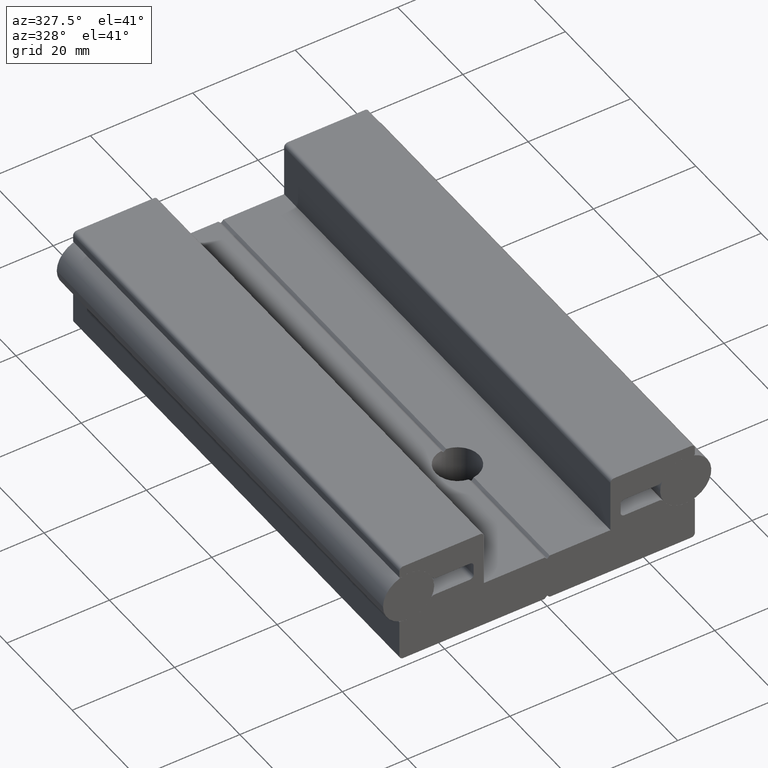
[diagram: clean part render]
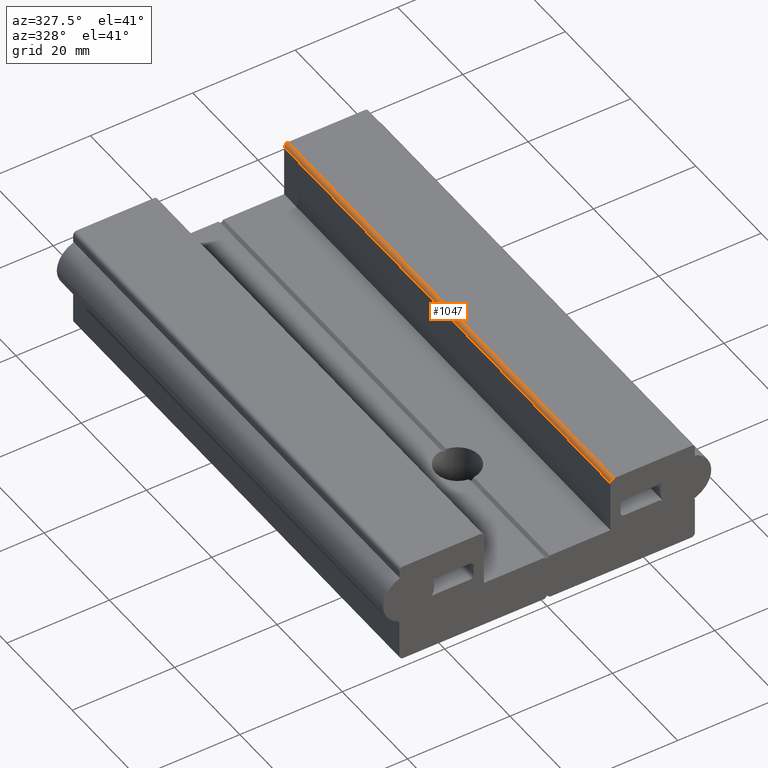
[diagram: same view with one face highlighted and labeled with its STEP entity id]
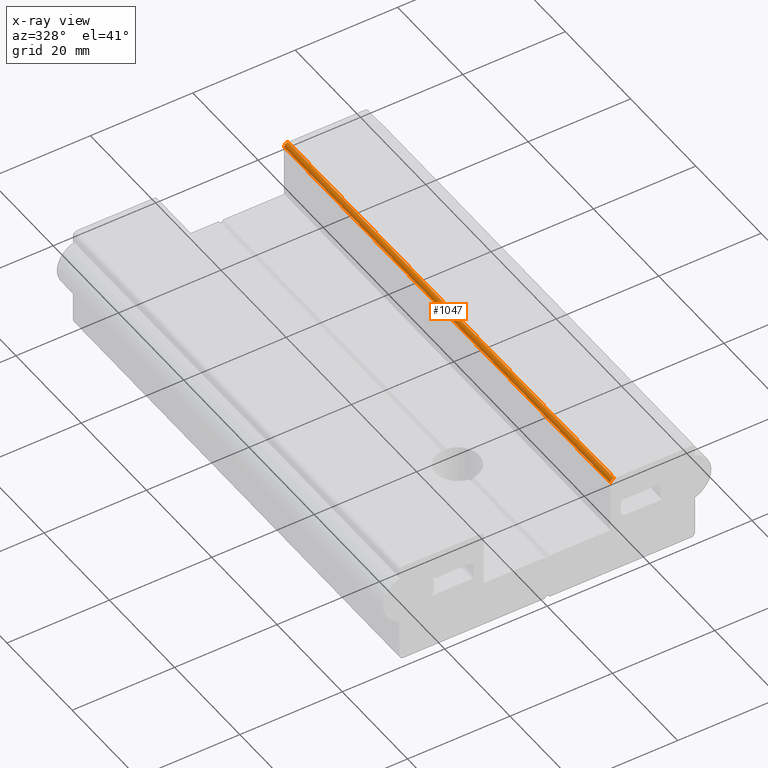
[diagram: x-ray of the same camera — body ghosted, the highlighted face saturated]
A machine part, auxiliary view. The second image highlights one B-rep face of the part: STEP entity #1047.
The next image is the same camera in x-ray: the body ghosted, the highlighted face saturated — about 0% of this face is hidden behind the body in this view.
In plain terms, the highlighted cylindrical surface (edge-blend (fillet) strip) has radius 0.75 mm, axis along (0, 1, 0).
Its self-contained STEP definition (entity closure, byte-faithful):
#91=FACE_OUTER_BOUND('',#145,.T.);
#145=EDGE_LOOP('',(#901,#902,#903,#904));
#245=LINE('',#1869,#341);
#246=LINE('',#1870,#342);
#341=VECTOR('',#1522,10.);
#342=VECTOR('',#1523,10.);
#376=CIRCLE('',#1177,0.75);
#402=CIRCLE('',#1208,0.75);
#465=VERTEX_POINT('',#1705);
#466=VERTEX_POINT('',#1707);
#507=VERTEX_POINT('',#1801);
#508=VERTEX_POINT('',#1803);
#577=EDGE_CURVE('',#465,#466,#376,.T.);
#626=EDGE_CURVE('',#507,#508,#402,.F.);
#659=EDGE_CURVE('',#508,#465,#245,.T.);
#660=EDGE_CURVE('',#507,#466,#246,.T.);
#901=ORIENTED_EDGE('',*,*,#659,.F.);
#902=ORIENTED_EDGE('',*,*,#626,.F.);
#903=ORIENTED_EDGE('',*,*,#660,.T.);
#904=ORIENTED_EDGE('',*,*,#577,.F.);
#1004=CYLINDRICAL_SURFACE('',#1234,0.75);
#1047=ADVANCED_FACE('',(#91),#1004,.T.);
#1177=AXIS2_PLACEMENT_3D('',#1708,#1359,#1360);
#1208=AXIS2_PLACEMENT_3D('',#1804,#1444,#1445);
#1234=AXIS2_PLACEMENT_3D('',#1868,#1520,#1521);
#1359=DIRECTION('center_axis',(0.,1.,0.));
#1360=DIRECTION('ref_axis',(0.,0.,1.));
#1444=DIRECTION('center_axis',(0.,1.,0.));
#1445=DIRECTION('ref_axis',(0.,0.,1.));
#1520=DIRECTION('center_axis',(0.,1.,0.));
#1521=DIRECTION('ref_axis',(0.,0.,-1.));
#1522=DIRECTION('',(0.,1.,0.));
#1523=DIRECTION('',(0.,1.,0.));
#1705=CARTESIAN_POINT('',(12.35,100.,18.75));
#1707=CARTESIAN_POINT('',(13.1,100.,19.5));
#1708=CARTESIAN_POINT('Origin',(13.1,100.,18.75));
#1801=CARTESIAN_POINT('',(13.1,0.,19.5));
#1803=CARTESIAN_POINT('',(12.35,0.,18.75));
#1804=CARTESIAN_POINT('Origin',(13.1,0.,18.75));
#1868=CARTESIAN_POINT('Origin',(13.1,10.,18.75));
#1869=CARTESIAN_POINT('',(12.35,0.,18.75));
#1870=CARTESIAN_POINT('',(13.1,0.,19.5));